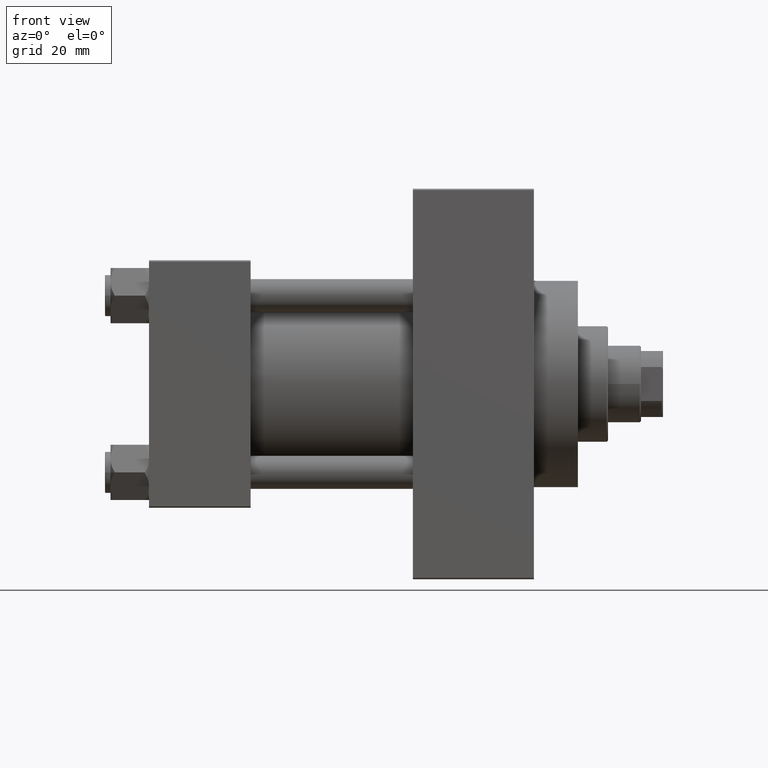
[diagram: clean part render]
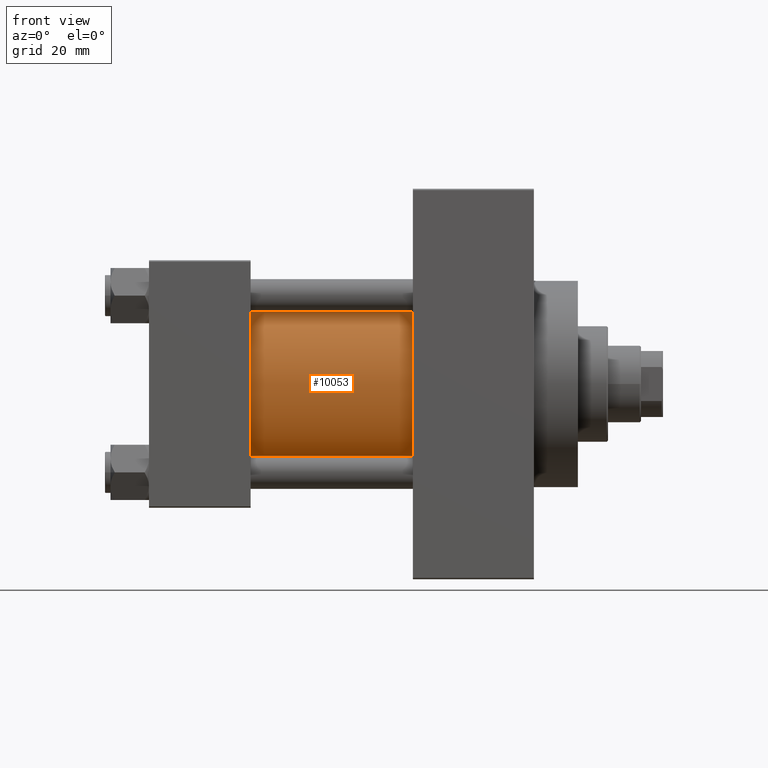
[diagram: same view with one face highlighted and labeled with its STEP entity id]
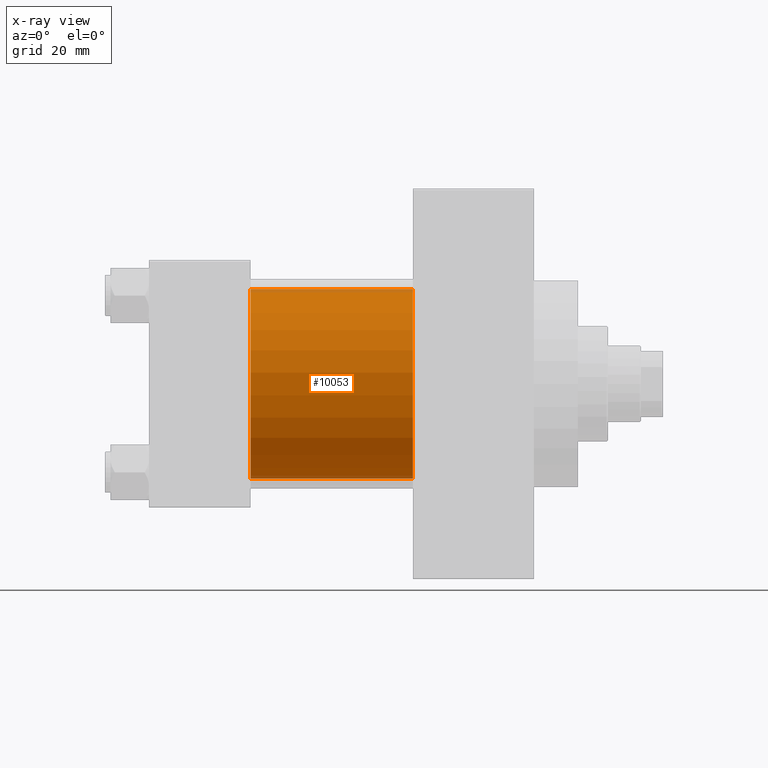
[diagram: x-ray of the same camera — body ghosted, the highlighted face saturated]
A machine part, front view. The second image highlights one B-rep face of the part: STEP entity #10053.
The next image is the same camera in x-ray: the body ghosted, the highlighted face saturated — about 3% of this face is hidden behind the body in this view.
In plain terms, the highlighted cylindrical surface (partial cylindrical patch) has radius 34.5 mm, axis along (-1, -0, -0).
Its self-contained STEP definition (entity closure, byte-faithful):
#192 = EDGE_CURVE ( 'NONE', #41462, #26502, #42601, .T. ) ;
#379 = EDGE_CURVE ( 'NONE', #25415, #46876, #5331, .T. ) ;
#2279 = CARTESIAN_POINT ( 'NONE',  ( 37.00000000000000000, -2.602085213965210642E-15, 34.50000000000000000 ) ) ;
#5331 = CIRCLE ( 'NONE', #38799, 34.50000000000000000 ) ;
#7489 = DIRECTION ( 'NONE',  ( 1.000000000000000000, -0.000000000000000000, 0.000000000000000000 ) ) ;
#10053 = ADVANCED_FACE ( 'NONE', ( #26457 ), #19242, .T. ) ;
#10087 = EDGE_CURVE ( 'NONE', #46876, #26502, #18749, .T. ) ;
#10162 = AXIS2_PLACEMENT_3D ( 'NONE', #41663, #23228, #34449 ) ;
#14513 = DIRECTION ( 'NONE',  ( -1.000000000000000000, -0.000000000000000000, -0.000000000000000000 ) ) ;
#16335 = ORIENTED_EDGE ( 'NONE', *, *, #10087, .F. ) ;
#18489 = EDGE_LOOP ( 'NONE', ( #16335, #49322, #31807, #44063 ) ) ;
#18649 = CARTESIAN_POINT ( 'NONE',  ( 37.00000000000000000, 1.622946243093158675E-15, -34.50000000000000000 ) ) ;
#18705 = CARTESIAN_POINT ( 'NONE',  ( 96.00000000000000000, -2.602085213965210642E-15, 34.50000000000000000 ) ) ;
#18749 = LINE ( 'NONE', #33456, #22910 ) ;
#19242 = CYLINDRICAL_SURFACE ( 'NONE', #10162, 34.50000000000000000 ) ;
#20394 = CARTESIAN_POINT ( 'NONE',  ( 96.00000000000000000, -2.602085213965210642E-15, 0.000000000000000000 ) ) ;
#21140 = AXIS2_PLACEMENT_3D ( 'NONE', #22229, #7489, #37434 ) ;
#21510 = CARTESIAN_POINT ( 'NONE',  ( 96.00000000000000000, -2.602085213965210642E-15, 34.50000000000000000 ) ) ;
#22229 = CARTESIAN_POINT ( 'NONE',  ( 37.00000000000000000, -2.602085213965210642E-15, 0.000000000000000000 ) ) ;
#22910 = VECTOR ( 'NONE', #14513, 1000.000000000000000 ) ;
#23228 = DIRECTION ( 'NONE',  ( -1.000000000000000000, -0.000000000000000000, -0.000000000000000000 ) ) ;
#25415 = VERTEX_POINT ( 'NONE', #21510 ) ;
#26457 = FACE_OUTER_BOUND ( 'NONE', #18489, .T. ) ;
#26502 = VERTEX_POINT ( 'NONE', #18649 ) ;
#27710 = VECTOR ( 'NONE', #37892, 1000.000000000000000 ) ;
#28112 = DIRECTION ( 'NONE',  ( 0.000000000000000000, 0.000000000000000000, -1.000000000000000000 ) ) ;
#29133 = EDGE_CURVE ( 'NONE', #25415, #41462, #29911, .T. ) ;
#29911 = LINE ( 'NONE', #18705, #27710 ) ;
#31807 = ORIENTED_EDGE ( 'NONE', *, *, #29133, .T. ) ;
#32998 = CARTESIAN_POINT ( 'NONE',  ( 96.00000000000000000, 1.622946243093158675E-15, -34.50000000000000000 ) ) ;
#33456 = CARTESIAN_POINT ( 'NONE',  ( 96.00000000000000000, 1.622946243093158675E-15, -34.50000000000000000 ) ) ;
#34449 = DIRECTION ( 'NONE',  ( 0.000000000000000000, 0.000000000000000000, 1.000000000000000000 ) ) ;
#35589 = DIRECTION ( 'NONE',  ( 1.000000000000000000, 0.000000000000000000, 0.000000000000000000 ) ) ;
#37434 = DIRECTION ( 'NONE',  ( 0.000000000000000000, 0.000000000000000000, 1.000000000000000000 ) ) ;
#37892 = DIRECTION ( 'NONE',  ( -1.000000000000000000, -0.000000000000000000, -0.000000000000000000 ) ) ;
#38799 = AXIS2_PLACEMENT_3D ( 'NONE', #20394, #35589, #28112 ) ;
#41462 = VERTEX_POINT ( 'NONE', #2279 ) ;
#41663 = CARTESIAN_POINT ( 'NONE',  ( 96.00000000000000000, -2.602085213965210642E-15, 0.000000000000000000 ) ) ;
#42601 = CIRCLE ( 'NONE', #21140, 34.50000000000000000 ) ;
#44063 = ORIENTED_EDGE ( 'NONE', *, *, #192, .T. ) ;
#46876 = VERTEX_POINT ( 'NONE', #32998 ) ;
#49322 = ORIENTED_EDGE ( 'NONE', *, *, #379, .F. ) ;